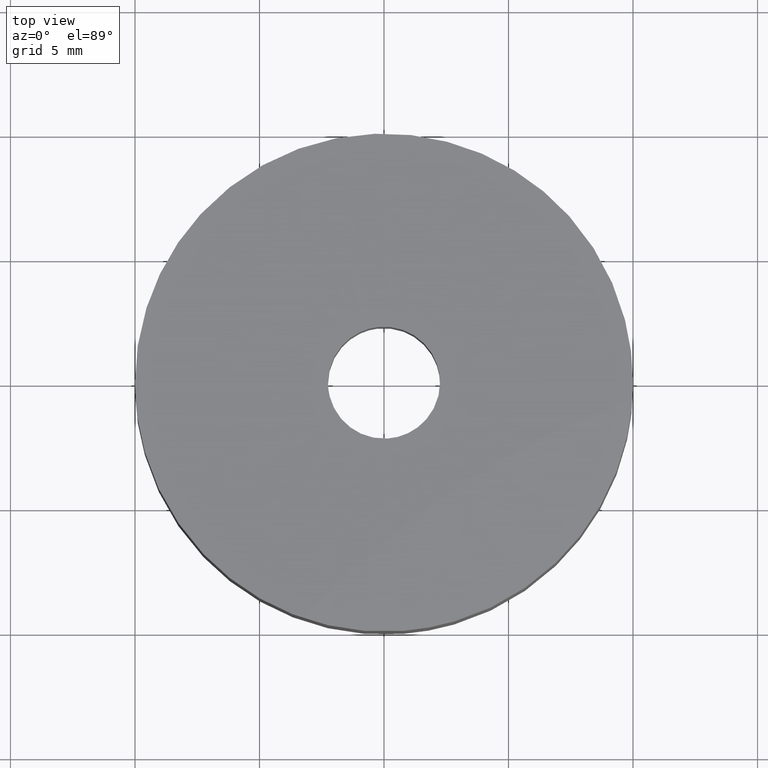
[diagram: clean part render]
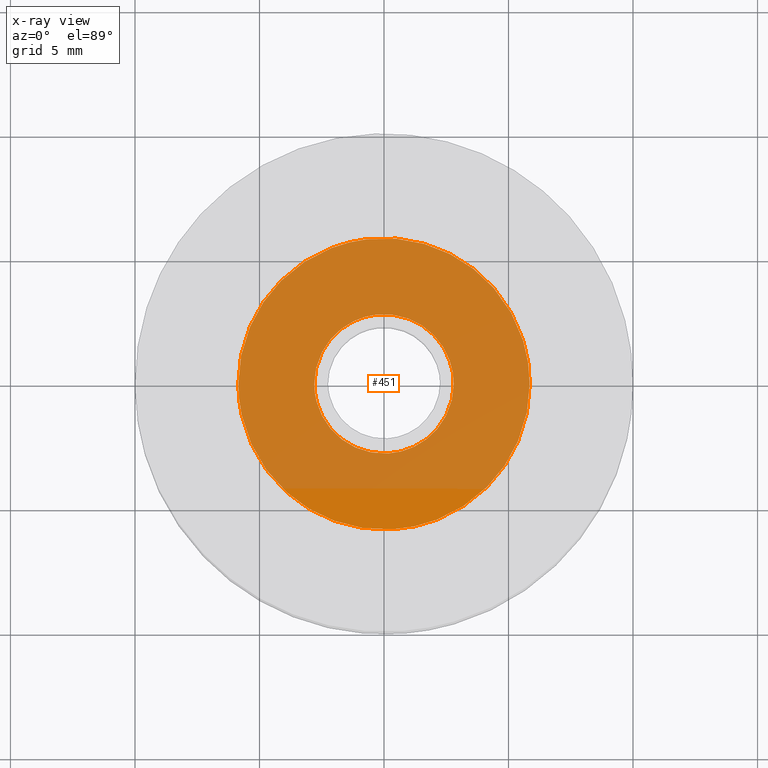
[diagram: x-ray — body ghosted, one internal face saturated and labeled with its STEP entity id]
A machine part, top view, then the same camera in x-ray: the body is ghosted and one INTERNAL B-rep face — a face not visible from any outside direction — is saturated and labeled: STEP entity #451.
In plain terms, the highlighted face is a freeform B-spline surface patch.
Its self-contained STEP definition (entity closure, byte-faithful):
#100=CARTESIAN_POINT('',(0.170933969224708,-2.794777554325442,4.799999999999900));
#101=VERTEX_POINT('',#100);
#107=CARTESIAN_POINT('',(2.800000000000000,0.0,4.799999999999900));
#108=VERTEX_POINT('',#107);
#109=CARTESIAN_POINT('',(2.800000000000000,0.0,4.799999999999900));
#110=CARTESIAN_POINT('',(2.800000000000000,-2.633978820523945,4.799999999999900));
#111=CARTESIAN_POINT('',(0.170933969224708,-2.794777554325442,4.799999999999900));
#119=(BOUNDED_CURVE()B_SPLINE_CURVE(2,(#109,#110,#111),.UNSPECIFIED.,.F.,.U.)B_SPLINE_CURVE_WITH_KNOTS((3,3),(0.500000000000000,0.739333082106592),.UNSPECIFIED.)CURVE()GEOMETRIC_REPRESENTATION_ITEM()RATIONAL_B_SPLINE_CURVE((1.0,0.719603852853024,0.976072298566042))REPRESENTATION_ITEM(''));
#120=EDGE_CURVE('',#108,#101,#119,.T.);
#122=CARTESIAN_POINT('',(-0.330495857053595,2.780426673816522,4.799999999999900));
#123=VERTEX_POINT('',#122);
#124=CARTESIAN_POINT('',(-0.330495857053595,2.780426673816521,4.799999999999900));
#125=CARTESIAN_POINT('',(-0.165827535040175,2.800000000000000,4.799999999999900));
#126=CARTESIAN_POINT('',(0.0,2.800000000000000,4.799999999999900));
#127=CARTESIAN_POINT('',(2.800000000000000,2.800000000000000,4.799999999999900));
#128=CARTESIAN_POINT('',(2.800000000000000,0.0,4.799999999999900));
#136=(BOUNDED_CURVE()B_SPLINE_CURVE(2,(#124,#125,#126,#127,#128),.UNSPECIFIED.,.F.,.U.)B_SPLINE_CURVE_WITH_KNOTS((3,2,3),(0.229562473513861,0.250000000000000,0.500000000000000),.UNSPECIFIED.)CURVE()GEOMETRIC_REPRESENTATION_ITEM()RATIONAL_B_SPLINE_CURVE((0.956026754184390,0.976055948331558,1.0,0.707106781186547,1.0))REPRESENTATION_ITEM(''));
#137=EDGE_CURVE('',#123,#108,#136,.T.);
#181=CARTESIAN_POINT('',(-2.800000000000000,0.0,4.799999999999900));
#182=VERTEX_POINT('',#181);
#183=CARTESIAN_POINT('',(-2.800000000000000,0.0,4.799999999999900));
#184=CARTESIAN_POINT('',(-2.800000000000000,2.486888672637399,4.799999999999900));
#185=CARTESIAN_POINT('',(-0.330495857053595,2.780426673816521,4.799999999999900));
#193=(BOUNDED_CURVE()B_SPLINE_CURVE(2,(#183,#184,#185),.UNSPECIFIED.,.F.,.U.)B_SPLINE_CURVE_WITH_KNOTS((3,3),(0.0,0.229562473513861),.UNSPECIFIED.)CURVE()GEOMETRIC_REPRESENTATION_ITEM()RATIONAL_B_SPLINE_CURVE((1.0,0.731050832854990,0.956026754184390))REPRESENTATION_ITEM(''));
#194=EDGE_CURVE('',#182,#123,#193,.T.);
#196=CARTESIAN_POINT('',(0.170933969224708,-2.794777554325442,4.799999999999900));
#197=CARTESIAN_POINT('',(0.085546763777804,-2.799999999999999,4.799999999999900));
#198=CARTESIAN_POINT('',(0.0,-2.800000000000000,4.799999999999900));
#199=CARTESIAN_POINT('',(-2.800000000000000,-2.800000000000000,4.799999999999900));
#200=CARTESIAN_POINT('',(-2.800000000000000,0.0,4.799999999999900));
#208=(BOUNDED_CURVE()B_SPLINE_CURVE(2,(#196,#197,#198,#199,#200),.UNSPECIFIED.,.F.,.U.)B_SPLINE_CURVE_WITH_KNOTS((3,2,3),(0.739333082106592,0.750000000000000,1.0),.UNSPECIFIED.)CURVE()GEOMETRIC_REPRESENTATION_ITEM()RATIONAL_B_SPLINE_CURVE((0.976072298566042,0.987502928333523,1.0,0.707106781186547,1.0))REPRESENTATION_ITEM(''));
#209=EDGE_CURVE('',#101,#182,#208,.T.);
#271=CARTESIAN_POINT('',(-0.690494045184109,5.809106469460337,4.799999999999900));
#272=VERTEX_POINT('',#271);
#278=CARTESIAN_POINT('',(5.850000000000001,0.0,4.799999999999900));
#279=VERTEX_POINT('',#278);
#280=CARTESIAN_POINT('',(-0.690494045184109,5.809106469460337,4.799999999999900));
#281=CARTESIAN_POINT('',(-0.346457953266738,5.850000000000000,4.799999999999900));
#282=CARTESIAN_POINT('',(0.0,5.850000000000001,4.799999999999900));
#283=CARTESIAN_POINT('',(5.850000000000001,5.850000000000001,4.799999999999900));
#284=CARTESIAN_POINT('',(5.850000000000001,0.0,4.799999999999900));
#292=(BOUNDED_CURVE()B_SPLINE_CURVE(2,(#280,#281,#282,#283,#284),.UNSPECIFIED.,.F.,.U.)B_SPLINE_CURVE_WITH_KNOTS((3,2,3),(0.229562654692858,0.250000000000000,0.500000000000000),.UNSPECIFIED.)CURVE()GEOMETRIC_REPRESENTATION_ITEM()RATIONAL_B_SPLINE_CURVE((0.956027109302947,0.976056160595957,1.0,0.707106781186548,1.0))REPRESENTATION_ITEM(''));
#293=EDGE_CURVE('',#272,#279,#292,.T.);
#295=CARTESIAN_POINT('',(0.357126724166233,-5.839089013093891,4.799999999999900));
#296=VERTEX_POINT('',#295);
#297=CARTESIAN_POINT('',(5.850000000000001,0.0,4.799999999999900));
#298=CARTESIAN_POINT('',(5.850000000000000,-5.503137320144258,4.799999999999900));
#299=CARTESIAN_POINT('',(0.357126724166233,-5.839089013093891,4.799999999999900));
#307=(BOUNDED_CURVE()B_SPLINE_CURVE(2,(#297,#298,#299),.UNSPECIFIED.,.F.,.U.)B_SPLINE_CURVE_WITH_KNOTS((3,3),(0.500000000000000,0.739333175953066),.UNSPECIFIED.)CURVE()GEOMETRIC_REPRESENTATION_ITEM()RATIONAL_B_SPLINE_CURVE((1.0,0.719603742905041,0.976072499697193))REPRESENTATION_ITEM(''));
#308=EDGE_CURVE('',#279,#296,#307,.T.);
#382=CARTESIAN_POINT('',(-5.850000000000001,0.0,4.799999999999900));
#383=VERTEX_POINT('',#382);
#384=CARTESIAN_POINT('',(0.357126724166233,-5.839089013093891,4.799999999999900));
#385=CARTESIAN_POINT('',(0.178730039101677,-5.850000000000001,4.799999999999900));
#386=CARTESIAN_POINT('',(0.0,-5.850000000000001,4.799999999999900));
#387=CARTESIAN_POINT('',(-5.850000000000001,-5.850000000000001,4.799999999999900));
#388=CARTESIAN_POINT('',(-5.850000000000001,0.0,4.799999999999900));
#396=(BOUNDED_CURVE()B_SPLINE_CURVE(2,(#384,#385,#386,#387,#388),.UNSPECIFIED.,.F.,.U.)B_SPLINE_CURVE_WITH_KNOTS((3,2,3),(0.739333175953066,0.750000000000000,1.0),.UNSPECIFIED.)CURVE()GEOMETRIC_REPRESENTATION_ITEM()RATIONAL_B_SPLINE_CURVE((0.976072499697193,0.987503038281507,1.0,0.707106781186548,1.0))REPRESENTATION_ITEM(''));
#397=EDGE_CURVE('',#296,#383,#396,.T.);
#399=CARTESIAN_POINT('',(-5.850000000000001,0.0,4.799999999999900));
#400=CARTESIAN_POINT('',(-5.850000000000001,5.195826586125093,4.799999999999900));
#401=CARTESIAN_POINT('',(-0.690494045184109,5.809106469460337,4.799999999999900));
#409=(BOUNDED_CURVE()B_SPLINE_CURVE(2,(#399,#400,#401),.UNSPECIFIED.,.F.,.U.)B_SPLINE_CURVE_WITH_KNOTS((3,3),(0.0,0.229562654692858),.UNSPECIFIED.)CURVE()GEOMETRIC_REPRESENTATION_ITEM()RATIONAL_B_SPLINE_CURVE((1.0,0.731050620590591,0.956027109302947))REPRESENTATION_ITEM(''));
#410=EDGE_CURVE('',#383,#272,#409,.T.);
#434=CARTESIAN_POINT('',(6.434414867491902,-6.434272923016585,4.799999999999900));
#435=CARTESIAN_POINT('',(-6.434415285916506,-6.434272923016585,4.799999999999900));
#436=CARTESIAN_POINT('',(6.434414867491902,6.434308593714277,4.799999999999900));
#437=CARTESIAN_POINT('',(-6.434415285916506,6.434308593714277,4.799999999999900));
#438=B_SPLINE_SURFACE_WITH_KNOTS('',1,1,((#434,#436),(#435,#437)),.UNSPECIFIED.,.F.,.F.,.U.,(2,2),(2,2),(0.0,12.868830153408410),(0.0,12.868581516730860),.UNSPECIFIED.);
#439=ORIENTED_EDGE('',*,*,#397,.F.);
#440=ORIENTED_EDGE('',*,*,#308,.F.);
#441=ORIENTED_EDGE('',*,*,#293,.F.);
#442=ORIENTED_EDGE('',*,*,#410,.F.);
#443=EDGE_LOOP('',(#439,#440,#441,#442));
#444=FACE_OUTER_BOUND('',#443,.T.);
#445=ORIENTED_EDGE('',*,*,#120,.T.);
#446=ORIENTED_EDGE('',*,*,#209,.T.);
#447=ORIENTED_EDGE('',*,*,#194,.T.);
#448=ORIENTED_EDGE('',*,*,#137,.T.);
#449=EDGE_LOOP('',(#445,#446,#447,#448));
#450=FACE_BOUND('',#449,.T.);
#451=ADVANCED_FACE('',(#444,#450),#438,.F.);